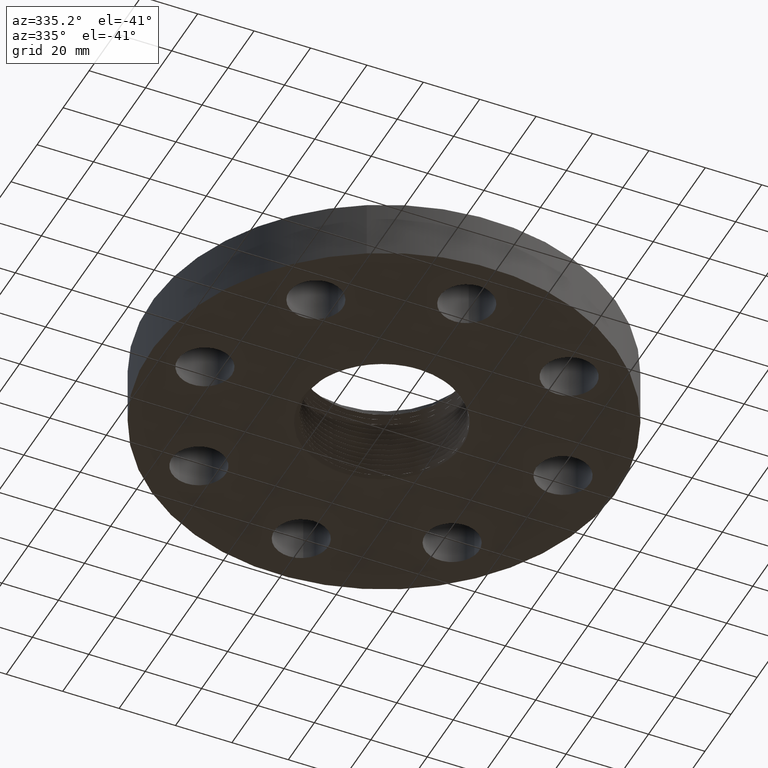
[diagram: clean part render]
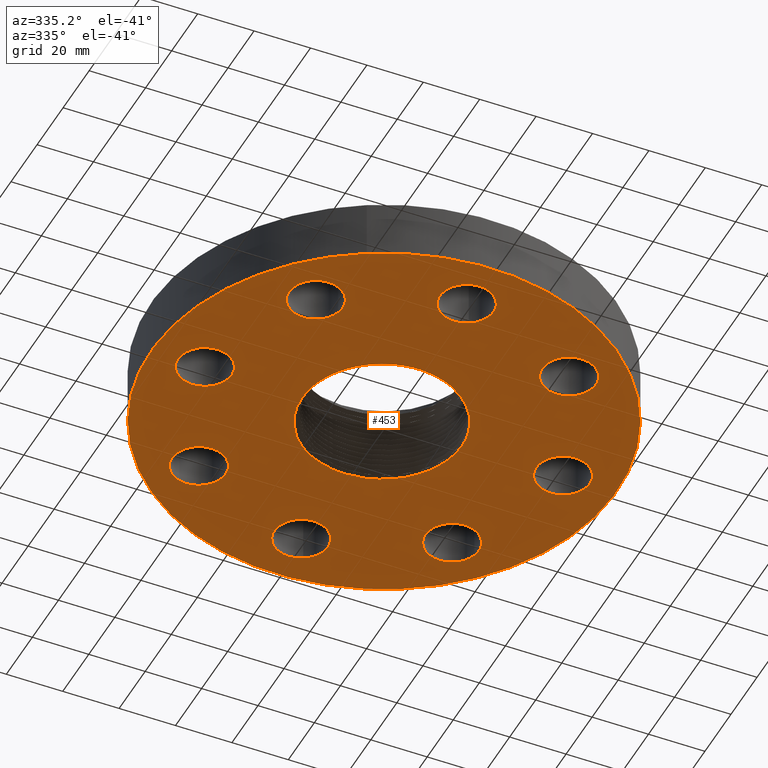
[diagram: same view with one face highlighted and labeled with its STEP entity id]
A machine part, auxiliary view. The second image highlights one B-rep face of the part: STEP entity #453.
In plain terms, the highlighted planar face has unit normal (0, 0, -1).
Its self-contained STEP definition (entity closure, byte-faithful):
#177=AXIS2_PLACEMENT_3D('Plane Axis2P3D',#174,#175,#176) ;
#181=AXIS2_PLACEMENT_3D('Circle Axis2P3D',#179,#180,$) ;
#190=AXIS2_PLACEMENT_3D('Circle Axis2P3D',#188,#189,$) ;
#199=AXIS2_PLACEMENT_3D('Circle Axis2P3D',#197,#198,$) ;
#208=AXIS2_PLACEMENT_3D('Circle Axis2P3D',#206,#207,$) ;
#217=AXIS2_PLACEMENT_3D('Circle Axis2P3D',#215,#216,$) ;
#226=AXIS2_PLACEMENT_3D('Circle Axis2P3D',#224,#225,$) ;
#235=AXIS2_PLACEMENT_3D('Circle Axis2P3D',#233,#234,$) ;
#244=AXIS2_PLACEMENT_3D('Circle Axis2P3D',#242,#243,$) ;
#253=AXIS2_PLACEMENT_3D('Circle Axis2P3D',#251,#252,$) ;
#262=AXIS2_PLACEMENT_3D('Circle Axis2P3D',#260,#261,$) ;
#271=AXIS2_PLACEMENT_3D('Circle Axis2P3D',#269,#270,$) ;
#280=AXIS2_PLACEMENT_3D('Circle Axis2P3D',#278,#279,$) ;
#289=AXIS2_PLACEMENT_3D('Circle Axis2P3D',#287,#288,$) ;
#298=AXIS2_PLACEMENT_3D('Circle Axis2P3D',#296,#297,$) ;
#307=AXIS2_PLACEMENT_3D('Circle Axis2P3D',#305,#306,$) ;
#316=AXIS2_PLACEMENT_3D('Circle Axis2P3D',#314,#315,$) ;
#325=AXIS2_PLACEMENT_3D('Circle Axis2P3D',#323,#324,$) ;
#334=AXIS2_PLACEMENT_3D('Circle Axis2P3D',#332,#333,$) ;
#343=AXIS2_PLACEMENT_3D('Circle Axis2P3D',#341,#342,$) ;
#174=CARTESIAN_POINT('Axis2P3D Location',(0.,0.,0.)) ;
#179=CARTESIAN_POINT('Axis2P3D Location',(0.,0.,0.)) ;
#183=CARTESIAN_POINT('Vertex',(1.55813300047,2.85214332616,2.79741234551E-016)) ;
#185=CARTESIAN_POINT('Vertex',(-1.55813300047,-2.85214332616,2.79741234551E-016)) ;
#188=CARTESIAN_POINT('Axis2P3D Location',(0.,0.,0.)) ;
#197=CARTESIAN_POINT('Axis2P3D Location',(2.50000000001,3.49676543189E-017,0.)) ;
#201=CARTESIAN_POINT('Vertex',(2.82909346072,-0.179784576977,0.)) ;
#203=CARTESIAN_POINT('Vertex',(2.1709065393,0.179784576977,0.)) ;
#206=CARTESIAN_POINT('Axis2P3D Location',(2.50000000001,6.99353086378E-017,0.)) ;
#215=CARTESIAN_POINT('Axis2P3D Location',(1.76776695297,-1.76776695297,0.)) ;
#219=CARTESIAN_POINT('Vertex',(1.66218962879,-1.40793584173,0.)) ;
#221=CARTESIAN_POINT('Vertex',(1.87334427715,-2.12759806422,0.)) ;
#224=CARTESIAN_POINT('Axis2P3D Location',(1.76776695297,-1.76776695297,0.)) ;
#233=CARTESIAN_POINT('Axis2P3D Location',(2.09805925913E-016,-2.50000000001,0.)) ;
#237=CARTESIAN_POINT('Vertex',(0.179784576977,-2.1709065393,0.)) ;
#239=CARTESIAN_POINT('Vertex',(-0.179784576977,-2.82909346072,0.)) ;
#242=CARTESIAN_POINT('Axis2P3D Location',(1.39870617276E-016,-2.50000000001,0.)) ;
#251=CARTESIAN_POINT('Axis2P3D Location',(-1.76776695297,-1.76776695297,0.)) ;
#255=CARTESIAN_POINT('Vertex',(-1.40793584173,-1.66218962879,0.)) ;
#257=CARTESIAN_POINT('Vertex',(-2.12759806422,-1.87334427715,0.)) ;
#260=CARTESIAN_POINT('Axis2P3D Location',(-1.76776695297,-1.76776695297,0.)) ;
#269=CARTESIAN_POINT('Axis2P3D Location',(-2.50000000001,-4.89547160465E-016,0.)) ;
#273=CARTESIAN_POINT('Vertex',(-2.1709065393,-0.179784576977,0.)) ;
#275=CARTESIAN_POINT('Vertex',(-2.82909346072,0.179784576977,0.)) ;
#278=CARTESIAN_POINT('Axis2P3D Location',(-2.50000000001,-4.54579506146E-016,0.)) ;
#287=CARTESIAN_POINT('Axis2P3D Location',(-1.76776695297,1.76776695297,0.)) ;
#291=CARTESIAN_POINT('Vertex',(-1.66218962879,1.40793584173,0.)) ;
#293=CARTESIAN_POINT('Vertex',(-1.87334427715,2.12759806422,0.)) ;
#296=CARTESIAN_POINT('Axis2P3D Location',(-1.76776695297,1.76776695297,0.)) ;
#305=CARTESIAN_POINT('Axis2P3D Location',(-6.99353086378E-016,2.50000000001,0.)) ;
#309=CARTESIAN_POINT('Vertex',(-0.179784576977,2.1709065393,0.)) ;
#311=CARTESIAN_POINT('Vertex',(0.179784576977,2.82909346072,0.)) ;
#314=CARTESIAN_POINT('Axis2P3D Location',(-4.89547160465E-016,2.50000000001,0.)) ;
#323=CARTESIAN_POINT('Axis2P3D Location',(1.76776695297,1.76776695297,0.)) ;
#327=CARTESIAN_POINT('Vertex',(1.40793584173,1.66218962879,0.)) ;
#329=CARTESIAN_POINT('Vertex',(2.12759806422,1.87334427715,0.)) ;
#332=CARTESIAN_POINT('Axis2P3D Location',(1.76776695297,1.76776695297,0.)) ;
#341=CARTESIAN_POINT('Axis2P3D Location',(0.,1.04902962957E-016,0.)) ;
#345=CARTESIAN_POINT('Vertex',(0.75847625341,-0.768324802415,-4.51075982445E-007)) ;
#347=CARTESIAN_POINT('Vertex',(0.660831581342,-0.853762777669,0.)) ;
#351=CARTESIAN_POINT('Control Point',(5.48503342092E-006,1.12953095387,0.)) ;
#352=CARTESIAN_POINT('Control Point',(0.0964905681294,1.12772641195,0.)) ;
#353=CARTESIAN_POINT('Control Point',(0.192689991465,1.11561775361,0.)) ;
#354=CARTESIAN_POINT('Control Point',(0.287119599683,1.09324541698,0.)) ;
#355=CARTESIAN_POINT('Control Point',(0.469545200345,1.02870001025,0.)) ;
#356=CARTESIAN_POINT('Control Point',(0.633782823209,0.927164955942,0.)) ;
#357=CARTESIAN_POINT('Control Point',(0.710054538326,0.867784748946,0.)) ;
#358=CARTESIAN_POINT('Control Point',(0.848483588346,0.733715431172,0.)) ;
#359=CARTESIAN_POINT('Control Point',(0.955008676312,0.57353800202,0.)) ;
#360=CARTESIAN_POINT('Control Point',(0.999354130091,0.488071084054,0.)) ;
#361=CARTESIAN_POINT('Control Point',(1.06385950414,0.321866317747,0.)) ;
#362=CARTESIAN_POINT('Control Point',(1.09393704485,0.1467421327,0.)) ;
#363=CARTESIAN_POINT('Control Point',(1.10024618213,0.0649433200596,0.)) ;
#364=CARTESIAN_POINT('Control Point',(1.09738405301,-0.11236997535,0.)) ;
#365=CARTESIAN_POINT('Control Point',(1.05922862677,-0.285437120239,0.)) ;
#366=CARTESIAN_POINT('Control Point',(1.02862251937,-0.37593953065,0.)) ;
#367=CARTESIAN_POINT('Control Point',(0.963834685706,-0.515264998339,0.)) ;
#368=CARTESIAN_POINT('Control Point',(0.876217805654,-0.640502907659,0.)) ;
#369=CARTESIAN_POINT('Control Point',(0.839786471826,-0.685788578506,0.)) ;
#370=CARTESIAN_POINT('Control Point',(0.800455020854,-0.728474729107,0.)) ;
#371=CARTESIAN_POINT('Control Point',(0.758476010002,-0.768324567002,0.)) ;
#372=CARTESIAN_POINT('Vertex',(5.48503341938E-006,1.12953095387,2.18547839493E-018)) ;
#376=CARTESIAN_POINT('Control Point',(-0.546586129228,1.00052536106,0.)) ;
#377=CARTESIAN_POINT('Control Point',(-0.455759271106,1.04798119193,0.)) ;
#378=CARTESIAN_POINT('Control Point',(-0.359691074271,1.08518237967,0.)) ;
#379=CARTESIAN_POINT('Control Point',(-0.259911882513,1.11134316882,0.)) ;
#380=CARTESIAN_POINT('Control Point',(-0.146950691845,1.12763856227,0.)) ;
#381=CARTESIAN_POINT('Control Point',(-0.0336773278518,1.12974230751,0.)) ;
#382=CARTESIAN_POINT('Control Point',(-0.0224454310399,1.12981134824,0.)) ;
#383=CARTESIAN_POINT('Control Point',(-0.0112180310896,1.12974086514,0.)) ;
#384=CARTESIAN_POINT('Control Point',(5.48503341941E-006,1.12953095387,0.)) ;
#385=CARTESIAN_POINT('Vertex',(-0.546586129228,1.00052536106,1.09273919747E-018)) ;
#389=CARTESIAN_POINT('Control Point',(-0.879583470103,0.737675262422,0.)) ;
#390=CARTESIAN_POINT('Control Point',(-0.823472133072,0.802134643935,0.)) ;
#391=CARTESIAN_POINT('Control Point',(-0.761400410276,0.861326236621,0.)) ;
#392=CARTESIAN_POINT('Control Point',(-0.694016145701,0.914510610012,0.)) ;
#393=CARTESIAN_POINT('Control Point',(-0.62211371452,0.961063197568,0.)) ;
#394=CARTESIAN_POINT('Control Point',(-0.546586129228,1.00052536106,0.)) ;
#395=CARTESIAN_POINT('Vertex',(-0.879583470103,0.737675262422,-5.46369598733E-019)) ;
#399=CARTESIAN_POINT('Control Point',(-0.879583470103,0.737675262422,0.)) ;
#400=CARTESIAN_POINT('Control Point',(-0.940569169334,0.661879547672,0.)) ;
#401=CARTESIAN_POINT('Control Point',(-0.993450963545,0.579712403342,0.)) ;
#402=CARTESIAN_POINT('Control Point',(-1.03733555186,0.492313018672,0.)) ;
#403=CARTESIAN_POINT('Control Point',(-1.10579749501,0.309742313887,0.)) ;
#404=CARTESIAN_POINT('Control Point',(-1.13425492612,0.117242277423,0.)) ;
#405=CARTESIAN_POINT('Control Point',(-1.13812903379,0.0199228638287,0.)) ;
#406=CARTESIAN_POINT('Control Point',(-1.12786031718,-0.132320257957,0.)) ;
#407=CARTESIAN_POINT('Control Point',(-1.09255539596,-0.279925019549,0.)) ;
#408=CARTESIAN_POINT('Control Point',(-1.07646075054,-0.332701861653,0.)) ;
#409=CARTESIAN_POINT('Control Point',(-1.02346052435,-0.474696925849,0.)) ;
#410=CARTESIAN_POINT('Control Point',(-0.947320819573,-0.606077249035,0.)) ;
#411=CARTESIAN_POINT('Control Point',(-0.890108140062,-0.68405025048,0.)) ;
#412=CARTESIAN_POINT('Control Point',(-0.759976882216,-0.826334791507,0.)) ;
#413=CARTESIAN_POINT('Control Point',(-0.60292477906,-0.937413163036,0.)) ;
#414=CARTESIAN_POINT('Control Point',(-0.518763452354,-0.984199939491,0.)) ;
#415=CARTESIAN_POINT('Control Point',(-0.366475442721,-1.04841327609,0.)) ;
#416=CARTESIAN_POINT('Control Point',(-0.205684296871,-1.08326877233,0.)) ;
#417=CARTESIAN_POINT('Control Point',(-0.137324091007,-1.09256454577,0.)) ;
#418=CARTESIAN_POINT('Control Point',(-0.068569550246,-1.09647207383,0.)) ;
#419=CARTESIAN_POINT('Control Point',(1.11346129528E-005,-1.09500939639,0.)) ;
#420=CARTESIAN_POINT('Vertex',(1.11346129519E-005,-1.09500939639,0.)) ;
#424=CARTESIAN_POINT('Control Point',(1.1134612952E-005,-1.09500939639,0.)) ;
#425=CARTESIAN_POINT('Control Point',(0.09840917868,-1.09291077941,0.)) ;
#426=CARTESIAN_POINT('Control Point',(0.196449944982,-1.07975707168,0.)) ;
#427=CARTESIAN_POINT('Control Point',(0.292478586573,-1.05560073825,0.)) ;
#428=CARTESIAN_POINT('Control Point',(0.394997859887,-1.01705954229,0.)) ;
#429=CARTESIAN_POINT('Control Point',(0.491189417121,-0.966455009029,0.)) ;
#430=CARTESIAN_POINT('Control Point',(0.500658470882,-0.961322361323,0.)) ;
#431=CARTESIAN_POINT('Control Point',(0.510059133534,-0.9560746704,0.)) ;
#432=CARTESIAN_POINT('Control Point',(0.519391867283,-0.950711795413,0.)) ;
#433=CARTESIAN_POINT('Vertex',(0.519391867283,-0.950711795413,2.18547839493E-018)) ;
#437=CARTESIAN_POINT('Control Point',(0.519391867283,-0.950711795413,0.)) ;
#438=CARTESIAN_POINT('Control Point',(0.549186756263,-0.933590738526,0.)) ;
#439=CARTESIAN_POINT('Control Point',(0.578289316334,-0.915295683557,0.)) ;
#440=CARTESIAN_POINT('Control Point',(0.606636666719,-0.895863912332,0.)) ;
#441=CARTESIAN_POINT('Control Point',(0.634169266571,-0.875337563973,0.)) ;
#442=CARTESIAN_POINT('Control Point',(0.660831527696,-0.853763091913,0.)) ;
#175=DIRECTION('Axis2P3D Direction',(0.,0.,-0.0393700787402)) ;
#176=DIRECTION('Axis2P3D XDirection',(0.0393700787402,0.,0.)) ;
#180=DIRECTION('Axis2P3D Direction',(0.,0.,-0.0393700787402)) ;
#189=DIRECTION('Axis2P3D Direction',(0.,0.,-0.0393700787402)) ;
#198=DIRECTION('Axis2P3D Direction',(0.,0.,-0.0393700787402)) ;
#207=DIRECTION('Axis2P3D Direction',(0.,0.,-0.0393700787402)) ;
#216=DIRECTION('Axis2P3D Direction',(0.,0.,-0.0393700787402)) ;
#225=DIRECTION('Axis2P3D Direction',(0.,0.,-0.0393700787402)) ;
#234=DIRECTION('Axis2P3D Direction',(0.,0.,-0.0393700787402)) ;
#243=DIRECTION('Axis2P3D Direction',(0.,0.,-0.0393700787402)) ;
#252=DIRECTION('Axis2P3D Direction',(0.,0.,-0.0393700787402)) ;
#261=DIRECTION('Axis2P3D Direction',(0.,0.,-0.0393700787402)) ;
#270=DIRECTION('Axis2P3D Direction',(0.,0.,-0.0393700787402)) ;
#279=DIRECTION('Axis2P3D Direction',(0.,0.,-0.0393700787402)) ;
#288=DIRECTION('Axis2P3D Direction',(0.,0.,-0.0393700787402)) ;
#297=DIRECTION('Axis2P3D Direction',(0.,0.,-0.0393700787402)) ;
#306=DIRECTION('Axis2P3D Direction',(0.,0.,-0.0393700787402)) ;
#315=DIRECTION('Axis2P3D Direction',(0.,0.,-0.0393700787402)) ;
#324=DIRECTION('Axis2P3D Direction',(0.,0.,-0.0393700787402)) ;
#333=DIRECTION('Axis2P3D Direction',(0.,0.,-0.0393700787402)) ;
#342=DIRECTION('Axis2P3D Direction',(0.,0.,-0.0393700787402)) ;
#194=ORIENTED_EDGE('',*,*,#187,.T.) ;
#195=ORIENTED_EDGE('',*,*,#192,.T.) ;
#212=ORIENTED_EDGE('',*,*,#205,.F.) ;
#213=ORIENTED_EDGE('',*,*,#210,.F.) ;
#230=ORIENTED_EDGE('',*,*,#223,.F.) ;
#231=ORIENTED_EDGE('',*,*,#228,.F.) ;
#248=ORIENTED_EDGE('',*,*,#241,.F.) ;
#249=ORIENTED_EDGE('',*,*,#246,.F.) ;
#266=ORIENTED_EDGE('',*,*,#259,.F.) ;
#267=ORIENTED_EDGE('',*,*,#264,.F.) ;
#284=ORIENTED_EDGE('',*,*,#277,.F.) ;
#285=ORIENTED_EDGE('',*,*,#282,.F.) ;
#302=ORIENTED_EDGE('',*,*,#295,.F.) ;
#303=ORIENTED_EDGE('',*,*,#300,.F.) ;
#320=ORIENTED_EDGE('',*,*,#313,.F.) ;
#321=ORIENTED_EDGE('',*,*,#318,.F.) ;
#338=ORIENTED_EDGE('',*,*,#331,.F.) ;
#339=ORIENTED_EDGE('',*,*,#336,.F.) ;
#445=ORIENTED_EDGE('',*,*,#349,.F.) ;
#446=ORIENTED_EDGE('',*,*,#374,.F.) ;
#447=ORIENTED_EDGE('',*,*,#387,.F.) ;
#448=ORIENTED_EDGE('',*,*,#397,.F.) ;
#449=ORIENTED_EDGE('',*,*,#422,.T.) ;
#450=ORIENTED_EDGE('',*,*,#435,.T.) ;
#451=ORIENTED_EDGE('',*,*,#443,.T.) ;
#214=FACE_BOUND('',#211,.T.) ;
#232=FACE_BOUND('',#229,.T.) ;
#250=FACE_BOUND('',#247,.T.) ;
#268=FACE_BOUND('',#265,.T.) ;
#286=FACE_BOUND('',#283,.T.) ;
#304=FACE_BOUND('',#301,.T.) ;
#322=FACE_BOUND('',#319,.T.) ;
#340=FACE_BOUND('',#337,.T.) ;
#452=FACE_BOUND('',#444,.T.) ;
#453=ADVANCED_FACE('PartBody',(#196,#214,#232,#250,#268,#286,#304,#322,#340,#452),#178,.T.) ;
#350=B_SPLINE_CURVE_WITH_KNOTS('',5,(#351,#352,#353,#354,#355,#356,#357,#358,#359,#360,#361,#362,#363,#364,#365,#366,#367,#368,#369,#370,#371),.UNSPECIFIED.,.F.,.U.,(6,3,3,3,3,3,6),(0.,17.2098050545,34.4257659189,51.6362872564,66.3839382676,83.596422265,94.1546905674),.UNSPECIFIED.) ;
#375=B_SPLINE_CURVE_WITH_KNOTS('',5,(#376,#377,#378,#379,#380,#381,#382,#383,#384),.UNSPECIFIED.,.F.,.U.,(6,3,6),(0.,18.1939279504,20.1958386946),.UNSPECIFIED.) ;
#388=B_SPLINE_CURVE_WITH_KNOTS('',5,(#389,#390,#391,#392,#393,#394),.UNSPECIFIED.,.F.,.U.,(6,6),(0.,15.1292632422),.UNSPECIFIED.) ;
#398=B_SPLINE_CURVE_WITH_KNOTS('',5,(#399,#400,#401,#402,#403,#404,#405,#406,#407,#408,#409,#410,#411,#412,#413,#414,#415,#416,#417,#418,#419),.UNSPECIFIED.,.F.,.U.,(6,3,3,3,3,3,6),(0.,17.2226144445,34.4435105125,44.2810135863,61.5009799219,78.7271949359,91.1597015469),.UNSPECIFIED.) ;
#423=B_SPLINE_CURVE_WITH_KNOTS('',5,(#424,#425,#426,#427,#428,#429,#430,#431,#432),.UNSPECIFIED.,.F.,.U.,(6,3,6),(0.,17.8378844691,19.7996585851),.UNSPECIFIED.) ;
#436=B_SPLINE_CURVE_WITH_KNOTS('',5,(#437,#438,#439,#440,#441,#442),.UNSPECIFIED.,.F.,.U.,(6,6),(0.,6.2629925617),.UNSPECIFIED.) ;
#182=CIRCLE('generated circle',#181,3.25000000001) ;
#191=CIRCLE('generated circle',#190,3.25000000001) ;
#200=CIRCLE('generated circle',#199,0.375000000002) ;
#209=CIRCLE('generated circle',#208,0.375000000002) ;
#218=CIRCLE('generated circle',#217,0.375000000001) ;
#227=CIRCLE('generated circle',#226,0.375000000001) ;
#236=CIRCLE('generated circle',#235,0.375000000002) ;
#245=CIRCLE('generated circle',#244,0.375000000002) ;
#254=CIRCLE('generated circle',#253,0.375000000001) ;
#263=CIRCLE('generated circle',#262,0.375000000001) ;
#272=CIRCLE('generated circle',#271,0.375000000001) ;
#281=CIRCLE('generated circle',#280,0.375000000001) ;
#290=CIRCLE('generated circle',#289,0.375000000001) ;
#299=CIRCLE('generated circle',#298,0.375000000001) ;
#308=CIRCLE('generated circle',#307,0.375000000002) ;
#317=CIRCLE('generated circle',#316,0.375000000002) ;
#326=CIRCLE('generated circle',#325,0.375000000001) ;
#335=CIRCLE('generated circle',#334,0.375000000001) ;
#344=CIRCLE('generated circle',#343,1.07963385434) ;
#187=EDGE_CURVE('',#184,#186,#182,.T.) ;
#192=EDGE_CURVE('',#186,#184,#191,.T.) ;
#205=EDGE_CURVE('',#202,#204,#200,.T.) ;
#210=EDGE_CURVE('',#204,#202,#209,.T.) ;
#223=EDGE_CURVE('',#220,#222,#218,.T.) ;
#228=EDGE_CURVE('',#222,#220,#227,.T.) ;
#241=EDGE_CURVE('',#238,#240,#236,.T.) ;
#246=EDGE_CURVE('',#240,#238,#245,.T.) ;
#259=EDGE_CURVE('',#256,#258,#254,.T.) ;
#264=EDGE_CURVE('',#258,#256,#263,.T.) ;
#277=EDGE_CURVE('',#274,#276,#272,.T.) ;
#282=EDGE_CURVE('',#276,#274,#281,.T.) ;
#295=EDGE_CURVE('',#292,#294,#290,.T.) ;
#300=EDGE_CURVE('',#294,#292,#299,.T.) ;
#313=EDGE_CURVE('',#310,#312,#308,.T.) ;
#318=EDGE_CURVE('',#312,#310,#317,.T.) ;
#331=EDGE_CURVE('',#328,#330,#326,.T.) ;
#336=EDGE_CURVE('',#330,#328,#335,.T.) ;
#349=EDGE_CURVE('',#346,#348,#344,.T.) ;
#374=EDGE_CURVE('',#373,#346,#350,.T.) ;
#387=EDGE_CURVE('',#386,#373,#375,.T.) ;
#397=EDGE_CURVE('',#396,#386,#388,.T.) ;
#422=EDGE_CURVE('',#396,#421,#398,.T.) ;
#435=EDGE_CURVE('',#421,#434,#423,.T.) ;
#443=EDGE_CURVE('',#434,#348,#436,.T.) ;
#193=EDGE_LOOP('',(#194,#195)) ;
#211=EDGE_LOOP('',(#212,#213)) ;
#229=EDGE_LOOP('',(#230,#231)) ;
#247=EDGE_LOOP('',(#248,#249)) ;
#265=EDGE_LOOP('',(#266,#267)) ;
#283=EDGE_LOOP('',(#284,#285)) ;
#301=EDGE_LOOP('',(#302,#303)) ;
#319=EDGE_LOOP('',(#320,#321)) ;
#337=EDGE_LOOP('',(#338,#339)) ;
#444=EDGE_LOOP('',(#445,#446,#447,#448,#449,#450,#451)) ;
#196=FACE_OUTER_BOUND('',#193,.T.) ;
#178=PLANE('',#177) ;
#184=VERTEX_POINT('',#183) ;
#186=VERTEX_POINT('',#185) ;
#202=VERTEX_POINT('',#201) ;
#204=VERTEX_POINT('',#203) ;
#220=VERTEX_POINT('',#219) ;
#222=VERTEX_POINT('',#221) ;
#238=VERTEX_POINT('',#237) ;
#240=VERTEX_POINT('',#239) ;
#256=VERTEX_POINT('',#255) ;
#258=VERTEX_POINT('',#257) ;
#274=VERTEX_POINT('',#273) ;
#276=VERTEX_POINT('',#275) ;
#292=VERTEX_POINT('',#291) ;
#294=VERTEX_POINT('',#293) ;
#310=VERTEX_POINT('',#309) ;
#312=VERTEX_POINT('',#311) ;
#328=VERTEX_POINT('',#327) ;
#330=VERTEX_POINT('',#329) ;
#346=VERTEX_POINT('',#345) ;
#348=VERTEX_POINT('',#347) ;
#373=VERTEX_POINT('',#372) ;
#386=VERTEX_POINT('',#385) ;
#396=VERTEX_POINT('',#395) ;
#421=VERTEX_POINT('',#420) ;
#434=VERTEX_POINT('',#433) ;